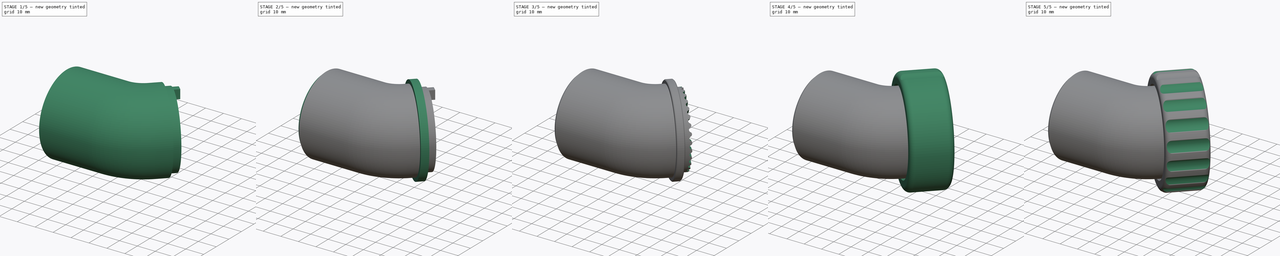
[diagram: build sequence overview — one tinted view per stage of 5, left to right]
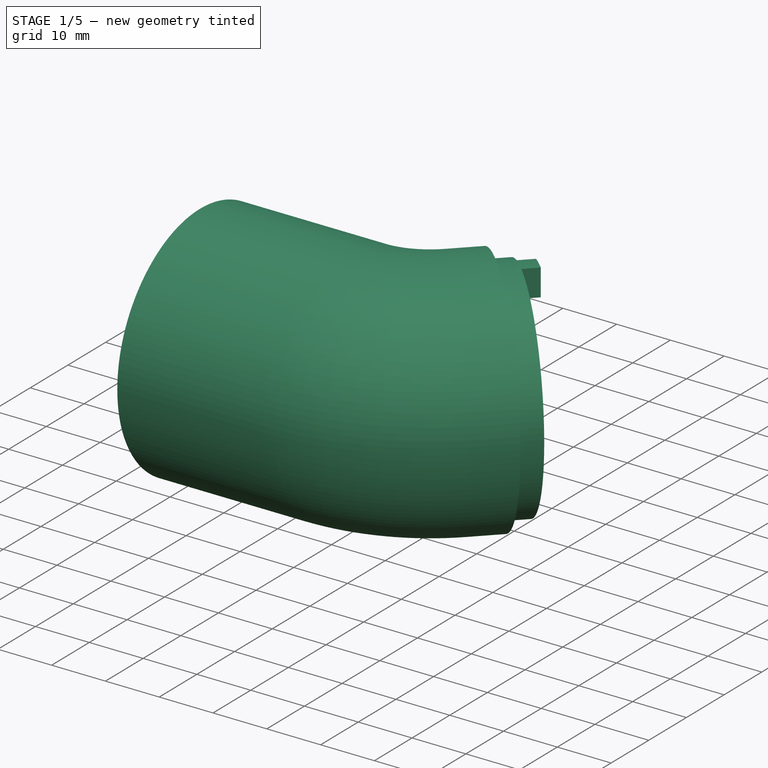
[diagram: stage 1 of 5 — iso view after this stage's code; geometry added in this stage tinted green]
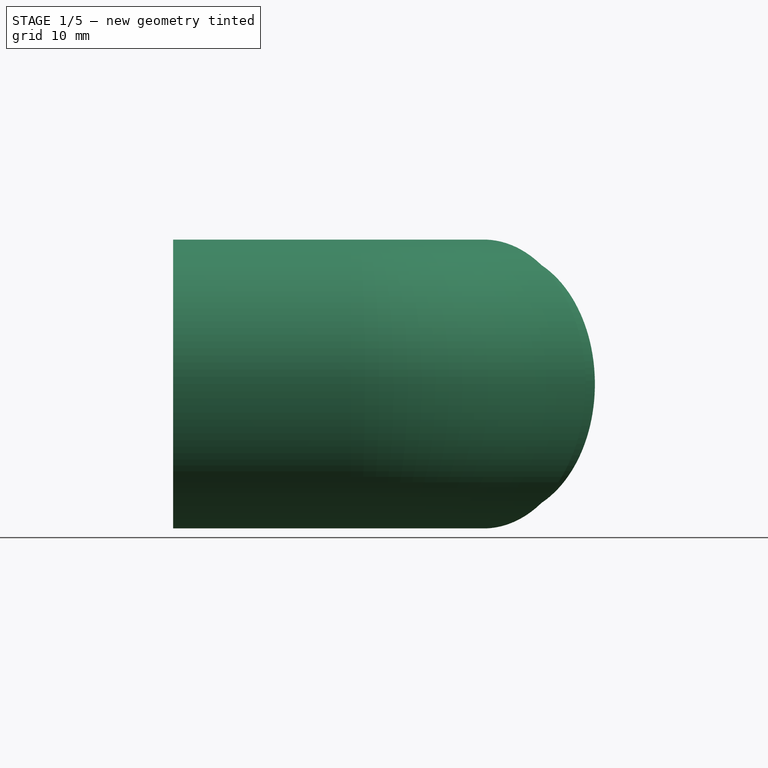
[diagram: stage 1 of 5 — front view after this stage's code; geometry added in this stage tinted green]
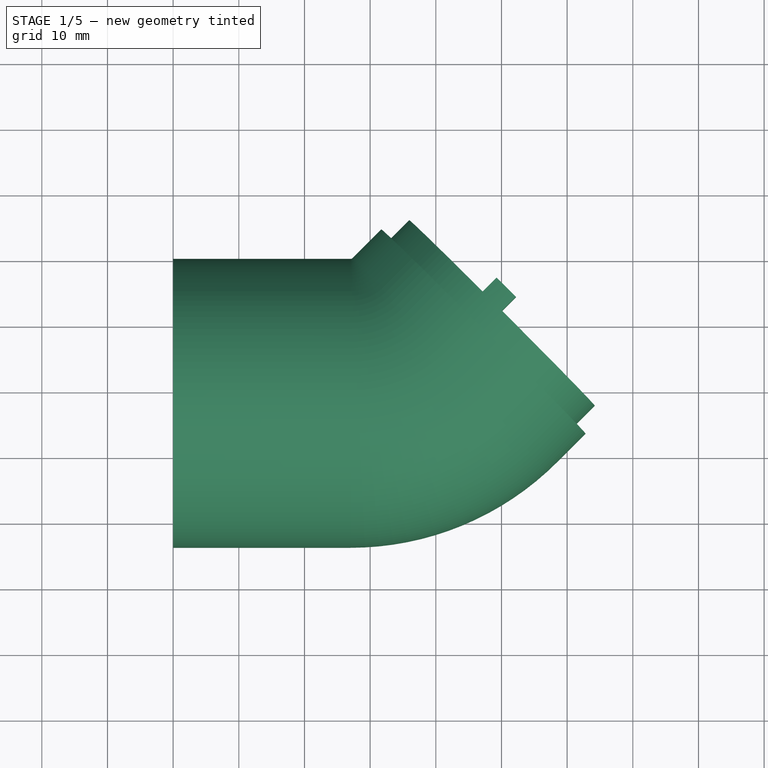
[diagram: stage 1 of 5 — top view after this stage's code; geometry added in this stage tinted green]
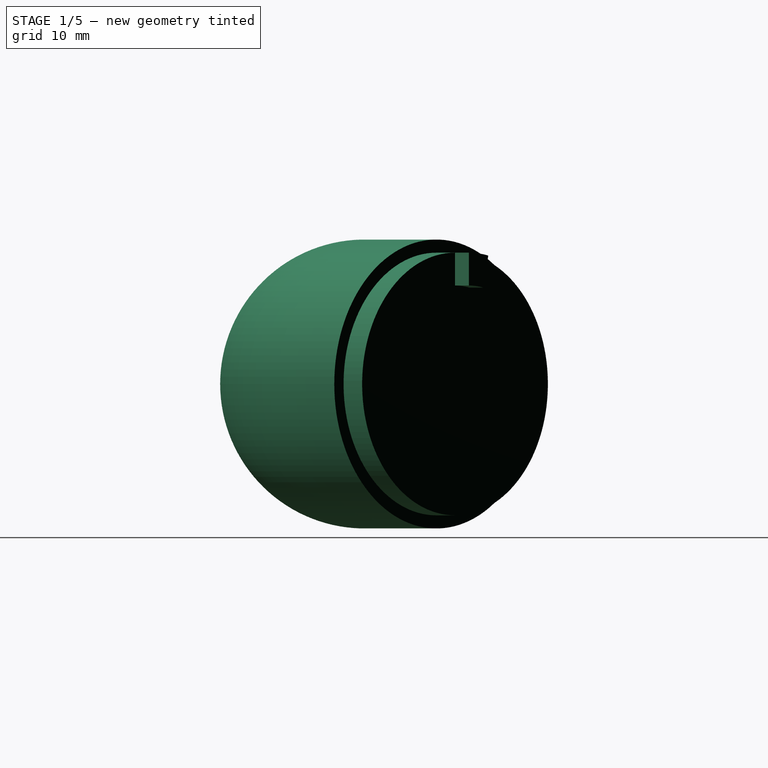
[diagram: stage 1 of 5 — right view after this stage's code; geometry added in this stage tinted green]
FCSTD DOCUMENT  (FreeCAD 0.20R)
Label: TS55_HosePort
License: Creative Commons Attribution-NonCommercial
LicenseURL: http://creativecommons.org/licenses/by-nc/4.0/
objects: Sketcher::SketchObject×11, Part::FeaturePython×4, PartDesign::Line×2, PartDesign::Plane×2, PartDesign::Revolution×2, PartDesign::Body×2, PartDesign::Chamfer×2, Part::Cut×2, Part::Feature×2, PartDesign::AdditivePipe×1, PartDesign::Pad×1, App::Link×1, PartDesign::SubtractivePipe×1, PartDesign::SubtractiveCylinder×1, PartDesign::PolarPattern×1, Part::MultiFuse×1, App::DocumentObjectGroup×1, Part::Compound×1
note: 44 computed .brp shape members not serialized (recipe doc carries the construction recipe); baked Part::Feature solids carry a one-line shape summary decoded from their .brp
EXTERNAL_REF file=../FestoolVacuumNozzle/VacuumNozzle.FCStd obj=Body001

FEATURE [Sketcher::SketchObject] Sketch
  FullyConstrained = true
  MapMode = 5
  Support = -> [XY_Plane]
  sketch-geometry (3):
    g0: LineSegment StartX=0 StartY=0 StartZ=0 EndX=27 EndY=0 EndZ=0
    g1: ArcOfCircle CenterX=27 CenterY=0.5 CenterZ=0 NormalX=0 NormalY=0 NormalZ=1 AngleXU=0 Radius=0.5 StartAngle=4.71239 EndAngle=5.49779
    g2: LineSegment StartX=27.3536 StartY=0.146447 StartZ=0 EndX=31.6986 EndY=4.49147 EndZ=0
  constraints (8):
    c: PointOnObject(g0,g-1)
    c: Tangent(g0,g1) = -1.5708
    c: Tangent(g1,g2) = -1.5708
    c: Radius(g1) = 0.5
    c: Distance(g0) = 27
    c: Coincident(g0,g-1)
    c: Angle(g2,g0) = 2.35619
    c: Distance(g2,g0) = 6.5
FEATURE [Sketcher::SketchObject] Sketch001
  FullyConstrained = true
  MapMode = 7
  Placement = pos=(0,0,0) rot=(0.57735,-0.57735,-0.57735;2.0944rad)
  Support = -> [Sketch]
  sketch-geometry (1):
    g0: Circle CenterX=22 CenterY=0 CenterZ=0 NormalX=0 NormalY=0 NormalZ=1 AngleXU=0 Radius=22
  constraints (3):
    c: PointOnObject(g0,g-1)
    c: PointOnObject(g-1,g0)
    c: Diameter(g0) = 44
FEATURE [PartDesign::AdditivePipe] AdditivePipe
  AuxilleryCurvelinear = true
  AuxillerySpineTangent = false
  Binormal = (0,0,0)
  Mode = 0
  Profile = -> Sketch001
  Spine = -> Sketch
  SpineTangent = false
  Transformation = 0
  Transition = 0
FEATURE [Sketcher::SketchObject] Sketch002
  FullyConstrained = true
  MapMode = 11
  Placement = pos=(47.2549,-11.0649,0) rot=(0.357407,-0.862856,0.357407;1.71777rad)
  Support = -> [AdditivePipe]
  sketch-geometry (1):
    g0: Circle CenterX=0 CenterY=0 CenterZ=0 NormalX=0 NormalY=0 NormalZ=1 AngleXU=0 Radius=20
  constraints (2):
    c: Coincident(g0,g-1)
    c: Diameter(g0) = 40
FEATURE [PartDesign::Pad] Pad
  BaseFeature = -> AdditivePipe
  Direction = (-0.707107,-0.707107,0)
  Length = 4
  Length2 = 100
  Profile = -> Sketch002
  Reversed = true
  Type = 0
FEATURE [Part::Feature] Cut_Face10  label="SupportSurface_RadialSpline"
  shape: bbox 31.11 x 31.11 x 40 mm, 1 faces, 0 solids (baked)
FEATURE [Sketcher::SketchObject] Mapped_Sketch002
  FullyConstrained = true
  Support = -> [Cut_Face10]
  expr: Constraints[18] = .Constraints.width / 30
  sketch-geometry (11):
    g0: LineSegment StartX=0 StartY=-4 StartZ=0 EndX=125.66 EndY=-4 EndZ=0
    g1: LineSegment StartX=125.66 StartY=-4 StartZ=0 EndX=125.66 EndY=0 EndZ=0
    g2: LineSegment StartX=125.66 StartY=0 StartZ=0 EndX=0 EndY=0 EndZ=0
    g3: LineSegment StartX=0 StartY=0 StartZ=0 EndX=0 EndY=-4 EndZ=0
    g4: ArcOfCircle CenterX=0 CenterY=-2.83149 CenterZ=0 NormalX=0 NormalY=0 NormalZ=1 AngleXU=0 Radius=1.16851 StartAngle=4.71239 EndAngle=5.82342
    g5: ArcOfCircle CenterX=2.09433 CenterY=-3.86851 CenterZ=0 NormalX=0 NormalY=0 NormalZ=1 AngleXU=0 Radius=1.16851 StartAngle=0.459761 EndAngle=2.68183
    g6: ArcOfCircle CenterX=4.18867 CenterY=-2.83149 CenterZ=0 NormalX=0 NormalY=0 NormalZ=1 AngleXU=0 Radius=1.16851 StartAngle=3.60135 EndAngle=4.71239
    g7: GeomPoint X=2.09433 Y=-2.7 Z=0
    g8: LineSegment StartX=0 StartY=-4 StartZ=0 EndX=0 EndY=-7 EndZ=0
    g9: LineSegment StartX=0 StartY=-7 StartZ=0 EndX=4.18867 EndY=-7 EndZ=0
    g10: LineSegment StartX=4.18867 StartY=-7 StartZ=0 EndX=4.18867 EndY=-4 EndZ=0
  constraints (32):
    c: Coincident(g0,g1)
    c: Coincident(g1,g2)
    c: Coincident(g2,g3)
    c: Coincident(g3,g0)
    c: Horizontal(g0)
    c: Horizontal(g2)
    c: Vertical(g1)
    c: Vertical(g3)
    c: DistanceX(g2,g2) = 125.66  'width'
    c: DistanceY(g1,g1) = 4
    c: DistanceX(g0,g-1) = 0
    c: DistanceY(g0,g-1) = 4
    c: PointOnObject(g4,g3)
    c: Coincident(g4,g0)
    c: PointOnObject(g6,g0)
    c: Horizontal(g5,g4)
    c: Tangent(g5,g4) = 1.5708
    c: Tangent(g6,g5) = 1.5708
    c: DistanceX(g4,g6) = 4.18867
    c: Vertical(g6,g6)
    c: PointOnObject(g7,g5)
    c: Vertical(g7,g5)
    c: DistanceY(g6,g7) = 1.3
    c: Equal(g6,g5)
    c: Coincident(g8,g4)
    c: PointOnObject(g8,g-2)
    c: Coincident(g9,g8)
    c: Horizontal(g9)
    c: Coincident(g10,g9)
    c: Coincident(g10,g6)
    c: Vertical(g10)
    c: Distance(g10) = 3
FEATURE [Part::FeaturePython] Sketch_On_Surface001  label="RadialSplineKnockout_Profile"  # WARN: FeaturePython — macro-defined, semantics opaque (R4)
  ConstructionBounds = true
  FillExtrusion = true
  FillFaces = true
  ReverseU = false
  ReverseV = false
  Sketch = -> Mapped_Sketch002
  SwapUV = false
  Thickness = -5
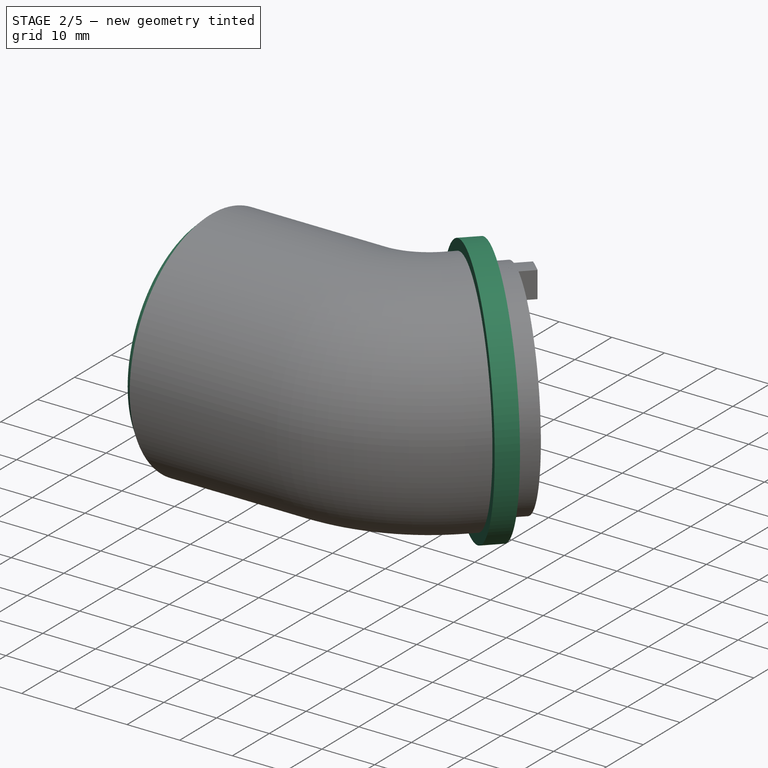
[diagram: stage 2 of 5 — iso view after this stage's code; geometry added in this stage tinted green]
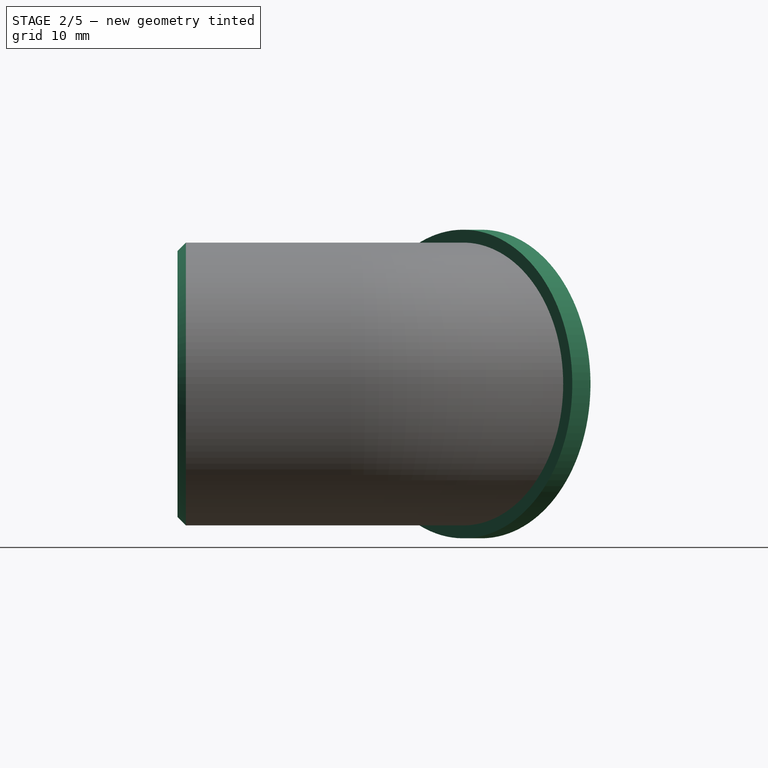
[diagram: stage 2 of 5 — front view after this stage's code; geometry added in this stage tinted green]
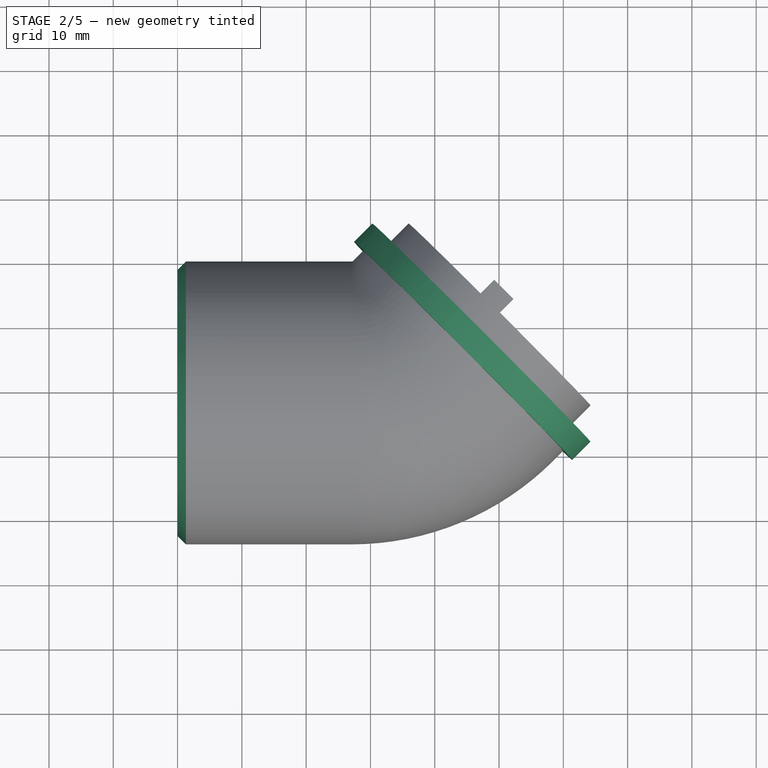
[diagram: stage 2 of 5 — top view after this stage's code; geometry added in this stage tinted green]
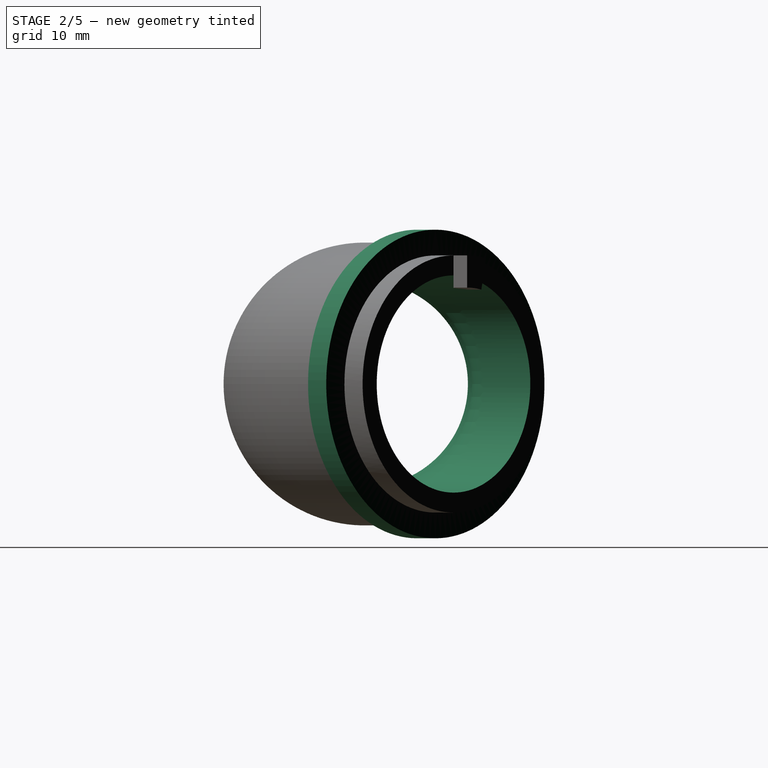
[diagram: stage 2 of 5 — right view after this stage's code; geometry added in this stage tinted green]
FEATURE [Sketcher::SketchObject] Sketch004
  FullyConstrained = true
  MapMode = 5
  Support = -> [XY_Plane]
  sketch-geometry (3):
    g0: LineSegment StartX=0 StartY=0 StartZ=0 EndX=27 EndY=0 EndZ=0
    g1: ArcOfCircle CenterX=27 CenterY=0.5 CenterZ=0 NormalX=0 NormalY=0 NormalZ=1 AngleXU=0 Radius=0.5 StartAngle=4.71239 EndAngle=5.49779
    g2: LineSegment StartX=27.3536 StartY=0.146447 StartZ=0 EndX=37.7096 EndY=10.5025 EndZ=0
  constraints (8):
    c: PointOnObject(g0,g-1)
    c: Tangent(g0,g1) = -1.5708
    c: Tangent(g1,g2) = -1.5708
    c: Radius(g1) = 0.5
    c: Distance(g0) = 27
    c: Coincident(g0,g-1)
    c: Angle(g2,g0) = 2.35619
    c: Distance(g2,g0) = 15
FEATURE [Sketcher::SketchObject] Sketch003
  FullyConstrained = true
  MapMode = 7
  Placement = pos=(0,0,0) rot=(0.57735,-0.57735,-0.57735;2.0944rad)
  Support = -> [Sketch004]
  sketch-geometry (1):
    g0: Circle CenterX=22 CenterY=0 CenterZ=0 NormalX=0 NormalY=0 NormalZ=1 AngleXU=0 Radius=16
  constraints (3):
    c: PointOnObject(g0,g-1)
    c: Diameter(g0) = 32
    c: DistanceX(g0) = 22
FEATURE [App::Link] Link  label="NozzleKnockoutV2"
  LinkPlacement = pos=(-72,-22,0) rot=(0,0,1;0rad)
  LinkedObject = -> <external ../FestoolVacuumNozzle/VacuumNozzle.FCStd>#Body001
  Placement = pos=(-72,-22,0) rot=(0,0,1;0rad)
FEATURE [Sketcher::SketchObject] Sketch005
  FullyConstrained = true
  MapMode = 7
  Placement = pos=(37.7096,10.5025,0) rot=(0.862856,-0.357407,-0.357407;1.71777rad)
  Support = -> [Sketch004]
  sketch-geometry (1):
    g0: Circle CenterX=22 CenterY=0 CenterZ=0 NormalX=0 NormalY=0 NormalZ=1 AngleXU=0 Radius=17
  constraints (3):
    c: PointOnObject(g0,g-1)
    c: DistanceX(g0) = 22
    c: Radius(g0) = 17
FEATURE [PartDesign::SubtractivePipe] SubtractivePipe
  AuxilleryCurvelinear = true
  AuxillerySpineTangent = false
  BaseFeature = -> Pad
  Binormal = (0,0,0)
  Mode = 0
  Profile = -> Sketch003
  Reversed = true
  Sections = -> [Sketch005]
  Spine = -> Sketch004
  SpineTangent = false
  Transformation = 1
  Transition = 0
FEATURE [PartDesign::Line] DatumLine
  AttacherType = Attacher::AttachEngineLine
  Length = 20
  MapMode = 19
  Placement = pos=(50.0834,-8.23649,-6.5391e-07) rot=(-0.862856,0.357407,-0.357407;1.71777rad)
  ResizeMode = 0
  Support = -> [SubtractivePipe]
FEATURE [PartDesign::Plane] DatumPlane
  AttachmentOffset = pos=(0,0,0) rot=(0,1,0;1.5708rad)
  Length = 246.734
  MapMode = 7
  Placement = pos=(47.2549,-11.0649,20) rot=(0.862856,0.357407,0.357407;1.71777rad)
  ResizeMode = 0
  Support = -> [SubtractivePipe]
  Width = 184.872
FEATURE [Sketcher::SketchObject] Sketch006
  FullyConstrained = true
  MapMode = 5
  Placement = pos=(47.2549,-11.0649,20) rot=(0.862856,0.357407,0.357407;1.71777rad)
  Support = -> [DatumPlane]
  sketch-geometry (4):
    g0: LineSegment StartX=0 StartY=0 StartZ=0 EndX=-4 EndY=0 EndZ=0
    g1: LineSegment StartX=-4 StartY=0 StartZ=0 EndX=-4 EndY=4 EndZ=0
    g2: LineSegment StartX=-4 StartY=4 StartZ=0 EndX=0 EndY=4 EndZ=0
    g3: LineSegment StartX=0 StartY=4 StartZ=0 EndX=0 EndY=0 EndZ=0
  constraints (11):
    c: Coincident(g0,g1)
    c: Coincident(g1,g2)
    c: Coincident(g2,g3)
    c: Coincident(g3,g0)
    c: Horizontal(g0)
    c: Horizontal(g2)
    c: Vertical(g1)
    c: Vertical(g3)
    c: Coincident(g0,g-1)
    c: DistanceX(g2,g2) = 4
    c: Distance(g3) = 4
FEATURE [PartDesign::Revolution] Revolution
  Angle = 360
  Axis = (0.707107,0.707107,3e-15)
  Base = (50.0834,-8.23649,-6.5391e-07)
  BaseFeature = -> SubtractivePipe
  Profile = -> Sketch006
  ReferenceAxis = -> DatumLine
FEATURE [PartDesign::Body] Body001  label="BayonetRing"
  Group = -> [DatumPlane001,Sketch007,Revolution001,Cylinder,DatumLine001,PolarPattern]
  Origin = -> Origin001
  Tip = -> PolarPattern
FEATURE [Sketcher::SketchObject] Mapped_Sketch001  label="Layout_RingBayonet"
  FullyConstrained = true
  expr: Constraints[25] = .Constraints.width / 3
  expr: Constraints[35] = .Constraints.width / 3
  sketch-geometry (19):
    g0: LineSegment StartX=0 StartY=0 StartZ=0 EndX=140.12 EndY=0 EndZ=0
    g1: LineSegment StartX=140.12 StartY=0 StartZ=0 EndX=140.12 EndY=11.3 EndZ=0
    g2: LineSegment StartX=140.12 StartY=11.3 StartZ=0 EndX=0 EndY=11.3 EndZ=0
    g3: LineSegment StartX=0 StartY=11.3 StartZ=0 EndX=0 EndY=0 EndZ=0
    g4: ArcOfCircle CenterX=16.7741 CenterY=6.62136 CenterZ=0 NormalX=0 NormalY=0 NormalZ=1 AngleXU=0 Radius=1.8 StartAngle=4.65357 EndAngle=6.22437
    g5: ArcOfCircle CenterX=1.8 CenterY=7.50311 CenterZ=0 NormalX=0 NormalY=0 NormalZ=1 AngleXU=0 Radius=1.8 StartAngle=3.08278 EndAngle=4.65357
    g6: LineSegment StartX=16.8799 StartY=8.41824 StartZ=0 EndX=1.90581 EndY=9.3 EndZ=0
    g7: LineSegment StartX=16.6683 StartY=4.82447 StartZ=0 EndX=1.69419 EndY=5.70623 EndZ=0
    g8: ArcOfCircle CenterX=63.4807 CenterY=6.62136 CenterZ=0 NormalX=0 NormalY=0 NormalZ=1 AngleXU=0 Radius=1.8 StartAngle=4.65357 EndAngle=7.79516
    g9: ArcOfCircle CenterX=48.5067 CenterY=7.50311 CenterZ=0 NormalX=0 NormalY=0 NormalZ=1 AngleXU=0 Radius=1.8 StartAngle=1.51198 EndAngle=4.65357
    g10: LineSegment StartX=63.5865 StartY=8.41824 StartZ=0 EndX=48.6125 EndY=9.3 EndZ=0
    g11: LineSegment StartX=63.3749 StartY=4.82447 StartZ=0 EndX=48.4009 EndY=5.70623 EndZ=0
    g12: ArcOfCircle CenterX=110.187 CenterY=6.62136 CenterZ=0 NormalX=0 NormalY=0 NormalZ=1 AngleXU=0 Radius=1.8 StartAngle=4.65357 EndAngle=7.79516
    g13: ArcOfCircle CenterX=95.2133 CenterY=7.50311 CenterZ=0 NormalX=0 NormalY=0 NormalZ=1 AngleXU=0 Radius=1.8 StartAngle=1.51198 EndAngle=4.65357
    g14: LineSegment StartX=110.293 StartY=8.41824 StartZ=0 EndX=95.3191 EndY=9.3 EndZ=0
    g15: LineSegment StartX=110.082 StartY=4.82447 StartZ=0 EndX=95.1075 EndY=5.70623 EndZ=0
    g16: LineSegment StartX=0.00311266 StartY=7.60892 StartZ=0 EndX=18.5709 EndY=6.51555 EndZ=0
    g17: ArcOfCircle CenterX=1.8 CenterY=7.50311 CenterZ=0 NormalX=0 NormalY=0 NormalZ=1 AngleXU=0 Radius=1.8 StartAngle=1.51198 EndAngle=3.08278
    g18: ArcOfCircle CenterX=16.7741 CenterY=6.62136 CenterZ=0 NormalX=0 NormalY=0 NormalZ=1 AngleXU=0 Radius=1.8 StartAngle=6.22437 EndAngle=7.79516
  constraints (50):
    c: Coincident(g0,g1)
    c: Coincident(g1,g2)
    c: Coincident(g2,g3)
    c: Coincident(g3,g0)
    c: Horizontal(g0)
    c: Horizontal(g2)
    c: Vertical(g1)
    c: Vertical(g3)
    c: DistanceX(g2,g2) = 140.12  'width'
    c: DistanceY(g1,g1) = 11.3
    c: DistanceX(g0,g-1) = 0
    c: DistanceY(g0,g-1) = 0
    c: Tangent(g4,g7) = 1.5708
    c: Tangent(g7,g5) = 1.5708
    c: Equal(g4,g5)
    c: Radius(g4) = 1.8
    c: Distance(g6) = 15
    c: Tangent(g5,g-2)
    c: Tangent(g8,g11) = 1.5708
    c: Tangent(g8,g10) = -1.5708
    c: Tangent(g10,g9) = -1.5708
    c: Tangent(g11,g9) = 1.5708
    c: Equal(g8,g9)
    c: Equal(g4,g8) = 1.8
    c: Equal(g6,g10) = 12
    c: DistanceX(g4,g8) = 46.7067
    c: Tangent(g12,g15) = 1.5708
    c: Tangent(g12,g14) = -1.5708
    c: Tangent(g14,g13) = -1.5708
    c: Tangent(g15,g13) = 1.5708
    c: Equal(g12,g13)
    c: Equal(g12,g8)
    c: Equal(g15,g11)
    c: Horizontal(g8,g12)
    c: Horizontal(g13,g9)
    c: DistanceX(g8,g12) = 46.7067
    c: PointOnObject(g4,g16)
    c: PointOnObject(g5,g16)
    c: Coincident(g4,g16)
    c: Coincident(g5,g16)
    c: Coincident(g17,g5)
    c: Coincident(g17,g5)
    c: Coincident(g18,g4)
    c: Coincident(g18,g4)
    c: Tangent(g18,g6) = -1.5708
    c: Tangent(g17,g6) = -1.5708
    c: DistanceY(g6,g2) = 2
    c: Horizontal(g8,g4)
    c: Horizontal(g9,g5)
    c: Angle(g6,g2) = 0.0588176
FEATURE [PartDesign::Chamfer] Chamfer
  Angle = 45
  Base = -> Revolution [Edge1]
  BaseFeature = -> Revolution
  ChamferType = 0
  FlipDirection = false
  Refine = true
  Size = 1.3
  Size2 = 1
  SupportTransform = false
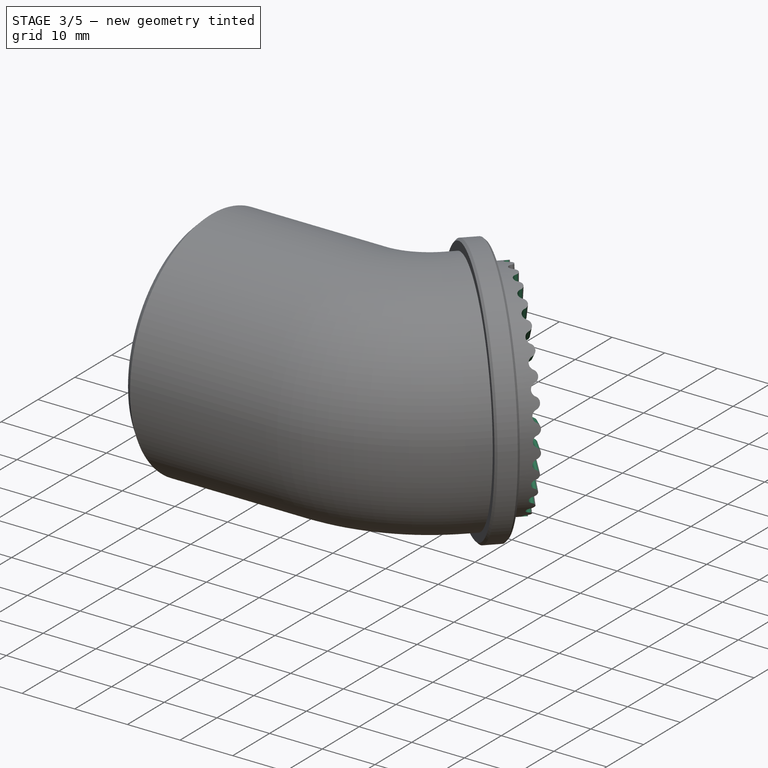
[diagram: stage 3 of 5 — iso view after this stage's code; geometry added in this stage tinted green]
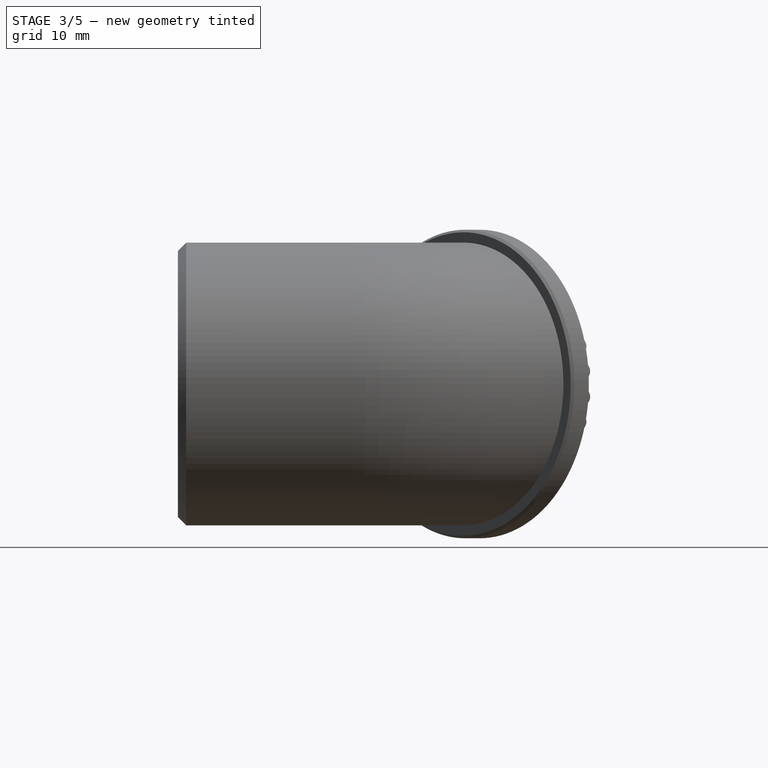
[diagram: stage 3 of 5 — front view after this stage's code; geometry added in this stage tinted green]
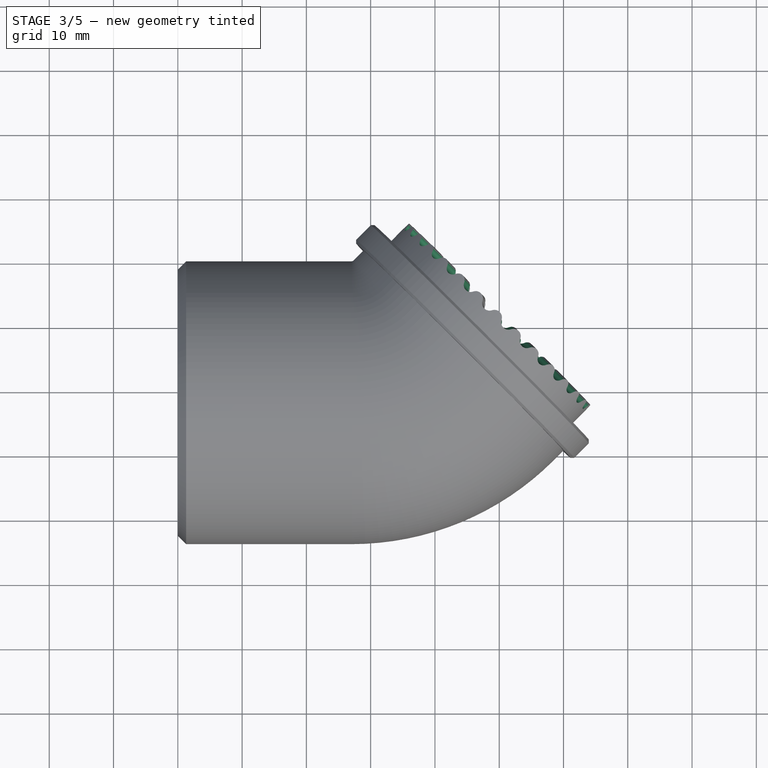
[diagram: stage 3 of 5 — top view after this stage's code; geometry added in this stage tinted green]
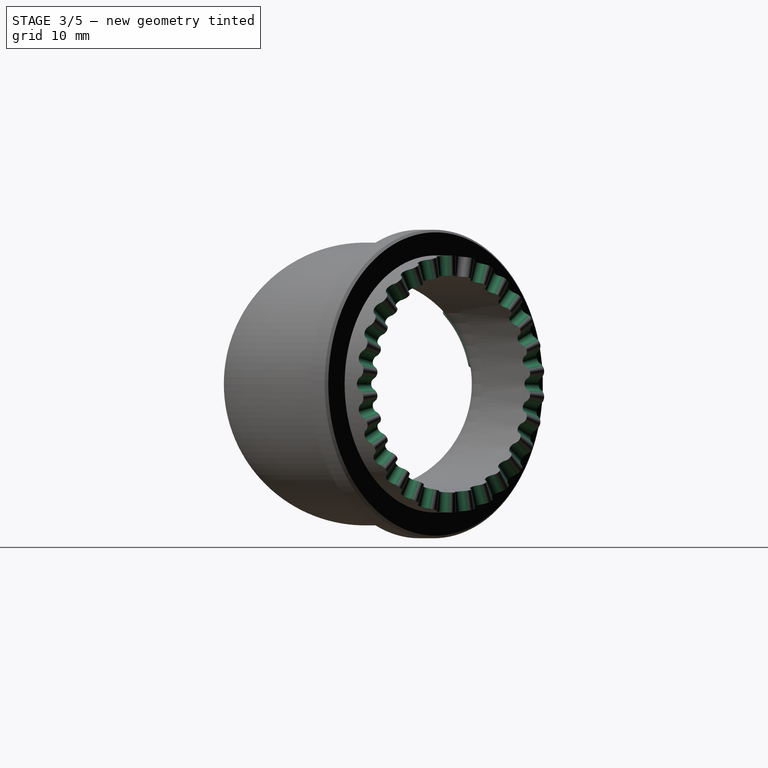
[diagram: stage 3 of 5 — right view after this stage's code; geometry added in this stage tinted green]
FEATURE [PartDesign::Chamfer] Chamfer001
  Angle = 45
  Base = -> Chamfer [Edge22,Edge18]
  BaseFeature = -> Chamfer
  ChamferType = 0
  FlipDirection = false
  Refine = true
  Size = 0.4
  Size2 = 1
  SupportTransform = false
FEATURE [PartDesign::Body] Body  label="OutletBlank"
  Group = -> [Sketch,Sketch001,AdditivePipe,Sketch002,Pad,Sketch003,Sketch004,SubtractivePipe,Sketch005,DatumLine,DatumPlane,Sketch006,Revolution,Chamfer,Chamfer001]
  Origin = -> Origin
  Tip = -> Chamfer001
FEATURE [Part::Cut] Cut  label="Outlet_Bayonet"
  Base = -> Body
  Tool = -> Link
FEATURE [Part::FeaturePython] Populate  label="Populate PolarArray with RadialSplineKnockout_Profile"  # WARN: FeaturePython — macro-defined, semantics opaque (R4)
  Copying = 0
  ExposePlacement = false
  MarkerShape = 1
  MarkerSize = 0
  NumElements = 0
  Object = -> Sketch_On_Surface001
  OutputCompounding = 1
  PlacementsTo = -> PolarArray
  Referencing = 1
  Type = lattice2PopulateCopies.LatticePopulateCopies
  isLattice = 0
FEATURE [Part::Cut] Cut001  label="HosePort"
  Base = -> Cut
  Refine = true
  Tool = -> Populate
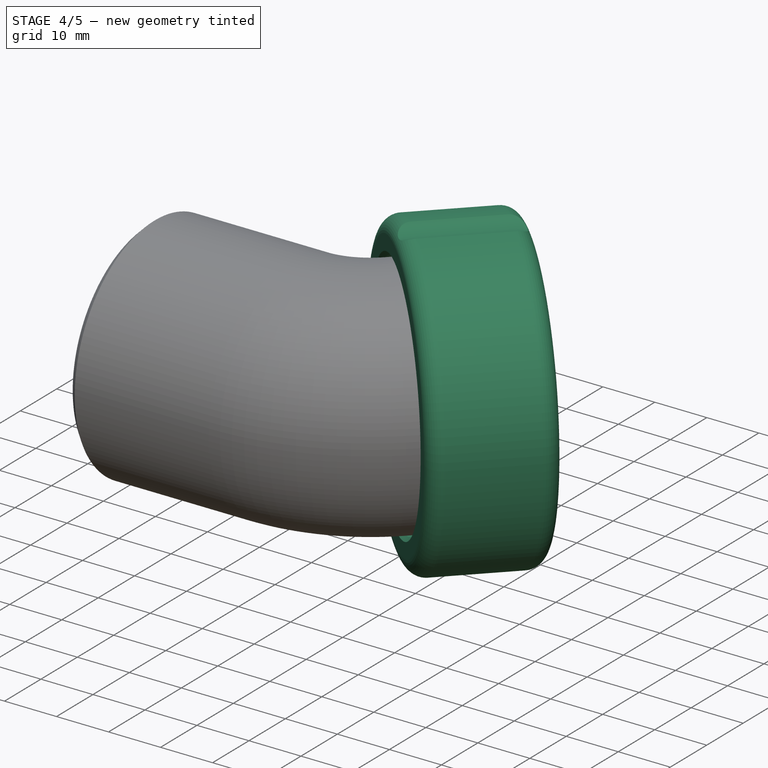
[diagram: stage 4 of 5 — iso view after this stage's code; geometry added in this stage tinted green]
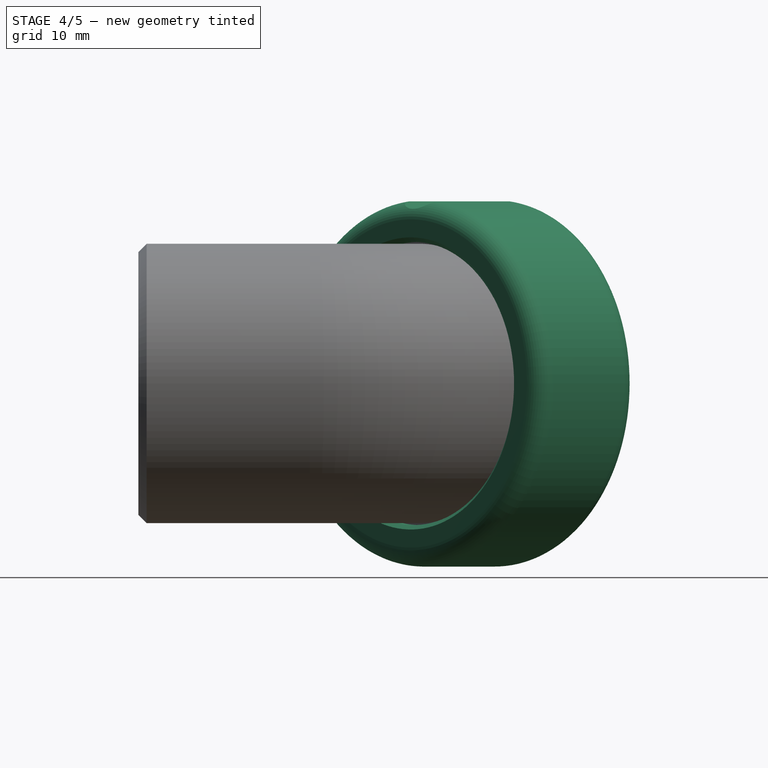
[diagram: stage 4 of 5 — front view after this stage's code; geometry added in this stage tinted green]
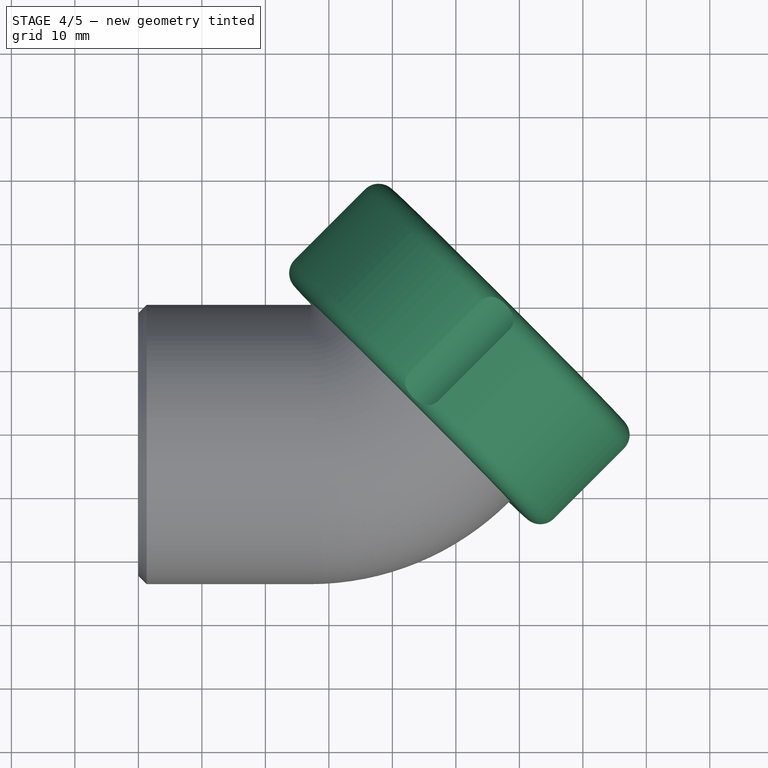
[diagram: stage 4 of 5 — top view after this stage's code; geometry added in this stage tinted green]
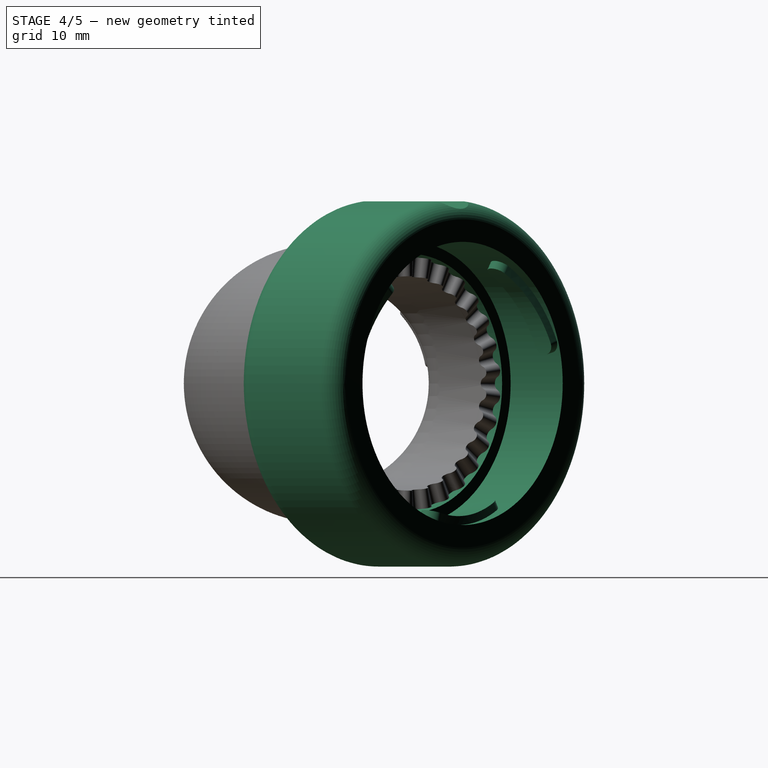
[diagram: stage 4 of 5 — right view after this stage's code; geometry added in this stage tinted green]
FEATURE [PartDesign::Plane] DatumPlane001
  Length = 253.455
  MapMode = 2
  Placement = pos=(43.5,-14.8,0) rot=(0,0,1;0.785398rad)
  ResizeMode = 0
  Width = 253.455
FEATURE [Sketcher::SketchObject] Sketch007
  FullyConstrained = true
  MapMode = 5
  Placement = pos=(43.5,-14.8,0) rot=(0,0,1;0.785398rad)
  Support = -> [DatumPlane001]
  sketch-geometry (13):
    g0: LineSegment StartX=-0.142893 StartY=-22.3 StartZ=0 EndX=1 EndY=-22.3 EndZ=0
    g1: LineSegment StartX=1 StartY=-22.3 StartZ=0 EndX=1 EndY=-24.3 EndZ=0
    g2: LineSegment StartX=1 StartY=-24.3 StartZ=0 EndX=5.8 EndY=-24.3 EndZ=0
    g3: LineSegment StartX=5.8 StartY=-24.3 StartZ=0 EndX=5.8 EndY=-20.4 EndZ=0
    g4: LineSegment StartX=5.8 StartY=-20.4 StartZ=0 EndX=9.2 EndY=-20.4 EndZ=0
    g5: LineSegment StartX=20.8 StartY=-22.3 StartZ=0 EndX=20.8 EndY=-25.85 EndZ=0
    g6: LineSegment StartX=17.8 StartY=-28.85 StartZ=0 EndX=2.15 EndY=-28.85 EndZ=0
    g7: LineSegment StartX=-0.85 StartY=-25.85 StartZ=0 EndX=-0.85 EndY=-23.0071 EndZ=0
    g8: ArcOfCircle CenterX=2.15 CenterY=-25.85 CenterZ=0 NormalX=0 NormalY=0 NormalZ=1 AngleXU=0 Radius=3 StartAngle=3.14159 EndAngle=4.71239
    g9: ArcOfCircle CenterX=17.8 CenterY=-25.85 CenterZ=0 NormalX=0 NormalY=0 NormalZ=1 AngleXU=0 Radius=3 StartAngle=4.71239 EndAngle=6.28319
    g10: LineSegment StartX=-0.142893 StartY=-22.3 StartZ=0 EndX=-0.85 EndY=-23.0071 EndZ=0
    g11: LineSegment StartX=9.2 StartY=-20.4 StartZ=0 EndX=9.2 EndY=-22.3 EndZ=0
    g12: LineSegment StartX=9.2 StartY=-22.3 StartZ=0 EndX=20.8 EndY=-22.3 EndZ=0
  constraints (37):
    c: Coincident(g0,g1)
    c: Vertical(g1)
    c: Coincident(g1,g2)
    c: Horizontal(g2)
    c: Coincident(g2,g3)
    c: Vertical(g3)
    c: Coincident(g3,g4)
    c: Horizontal(g4)
    c: Vertical(g5)
    c: Vertical(g7)
    c: DistanceX(g2,g2) = 4.8
    c: Horizontal(g6)
    c: DistanceY(g3) = -20.4
    c: DistanceY(g2) = -24.3
    c: Horizontal(g0)
    c: Tangent(g6,g8) = 1.5708
    c: Tangent(g7,g8) = 1.5708
    c: Tangent(g5,g9) = 1.5708
    c: Tangent(g6,g9) = 1.5708
    c: Coincident(g0,g10)
    c: Coincident(g7,g10)
    c: Angle(g7,g10) = 2.35619
    c: DistanceX(g7,g1) = 1.85
    c: DistanceY(g6,g0) = 6.55
    c: Distance(g10) = 1
    c: Equal(g9,g8)
    c: DistanceX(g0) = 1
    c: DistanceY(g0) = -22.3
    c: Radius(g8) = 3
    c: Coincident(g11,g12)
    c: Horizontal(g12)
    c: Vertical(g11)
    c: Coincident(g4,g11)
    c: Coincident(g5,g12)
    c: DistanceX(g3,g5) = 15
    c: DistanceX(g4,g4) = 3.4
    c: DistanceY(g11) = -22.3
FEATURE [PartDesign::Revolution] Revolution001
  Angle = 360
  Axis = (0.707107,0.707107,0)
  Base = (43.5,-14.8,0)
  Placement = pos=(43.5,-14.8,0) rot=(0,0,1;0.785398rad)
  Profile = -> Sketch007
  ReferenceAxis = -> Sketch007 [H_Axis]
  Refine = true
  Reversed = true
FEATURE [PartDesign::SubtractiveCylinder] Cylinder
  Angle = 360
  AttacherType = Attacher::AttachEngine3D
  AttachmentOffset = pos=(32.5,0,-17) rot=(0,0,1;0rad)
  BaseFeature = -> Revolution001
  FirstAngle = 0
  Height = 33
  MapMode = 11
  Placement = pos=(59.622,1.32203,32.5) rot=(0.357407,-0.862856,0.357407;1.71777rad)
  Radius = 5
  Refine = true
  SecondAngle = 0
  Support = -> [Revolution001]
FEATURE [Part::FeaturePython] PolarArray  # WARN: FeaturePython — macro-defined, semantics opaque (R4)
  Alignment = 0
  AttacherType = Attacher::AttachEngine3D
  CellStart = A1
  Count = 30
  DistributionLaw = 0
  EndInclusive = false
  ExposePlacement = false
  FlipX = false
  FlipZ = false
  GeneratorMode = 0
  MapMode = 11
  MarkerShape = 1
  MarkerSize = 0
  NumElements = 30
  OrientMode = 2
  Placement = pos=(50.0834,-8.23645,-7.1e-15) rot=(0.281085,0.678598,-0.678598;3.68962rad)
  Radius = 20
  Reverse = false
  SpanEnd = 360
  SpanStart = 0
  Step = 12
  Support = -> [Cut]
  Type = lattice2PolarArray2.PolarArray
  UseArcRadius = true
  UseArcRange = 1
  VSGVersion = 1
  Values = 0.0 | 12.0 | 24.0 | 36.0 | 48.0 | 60.0 | 72.0 | 84.0 | 96.0 | 108.0 | 120.0 | 132.0 | 144.0 | 156.0 | 168.0 | 180.0 | 192.0 | 204.0 | 216.0 | 228.0 | 240.0 | 252.0 | 264.0 | 276.0 | 288.0 | 300.0 | 312.0 | 324.0 | 336.0 | 348.0
  ValuesSource = 2
  isLattice = 1
FEATURE [Part::Feature] PolarPattern_Face44  label="SupportSurface_RingBayonet"
  Placement = pos=(70.0872,-9.14315,76) rot=(0,0.816497,-0.57735;4.18879rad)
  shape: bbox 39.74 x 39.74 x 44.6 mm, 1 faces, 0 solids (baked)
FEATURE [Sketcher::SketchObject] Mapped_Sketch
  FullyConstrained = true
  Support = -> [PolarPattern_Face44]
  expr: Constraints[58] = Mapped_Sketch001.Constraints[46]
  expr: Constraints[59] = Mapped_Sketch001.Constraints[47]
  expr: Constraints[47] = Mapped_Sketch001.Constraints[35]
  expr: Constraints[37] = Mapped_Sketch001.Constraints[25]
  expr: Constraints[27] = Mapped_Sketch001.Constraints[15]
  expr: Constraints[22] = Mapped_Sketch001.Constraints[10]
  expr: Constraints[28] = Mapped_Sketch001.Constraints[16]
  expr: Constraints[21] = Mapped_Sketch001.Constraints[9]
  expr: Constraints[23] = Mapped_Sketch001.Constraints[11]
  expr: .Constraints.width = Mapped_Sketch001.Constraints[8]
  sketch-geometry (23):
    g0: LineSegment StartX=0 StartY=0 StartZ=0 EndX=140.115 EndY=0 EndZ=0
    g1: LineSegment StartX=140.115 StartY=0 StartZ=0 EndX=140.115 EndY=11.6 EndZ=0
    g2: LineSegment StartX=140.115 StartY=11.6 StartZ=0 EndX=0 EndY=11.6 EndZ=0
    g3: LineSegment StartX=0 StartY=11.6 StartZ=0 EndX=0 EndY=0 EndZ=0
    g4: LineSegment StartX=0 StartY=0 StartZ=0 EndX=140.12 EndY=0 EndZ=0
    g5: LineSegment StartX=140.12 StartY=0 StartZ=0 EndX=140.12 EndY=11.3 EndZ=0
    g6: LineSegment StartX=140.12 StartY=11.3 StartZ=0 EndX=0 EndY=11.3 EndZ=0
    g7: LineSegment StartX=0 StartY=11.3 StartZ=0 EndX=0 EndY=0 EndZ=0
    g8: ArcOfCircle CenterX=16.6661 CenterY=9.51607 CenterZ=0 NormalX=0 NormalY=0 NormalZ=1 AngleXU=0 Radius=1.8 StartAngle=4.84612 EndAngle=6.41692
    g9: ArcOfCircle CenterX=1.8 CenterY=7.51607 CenterZ=0 NormalX=0 NormalY=0 NormalZ=1 AngleXU=0 Radius=1.8 StartAngle=3.27532 EndAngle=4.84612
    g10: LineSegment StartX=16.4261 StartY=11.3 StartZ=0 EndX=1.56 EndY=9.3 EndZ=0
    g11: LineSegment StartX=16.9061 StartY=7.73214 StartZ=0 EndX=2.04 EndY=5.73214 EndZ=0
    g12: ArcOfCircle CenterX=63.3727 CenterY=9.51607 CenterZ=0 NormalX=0 NormalY=0 NormalZ=1 AngleXU=0 Radius=1.8 StartAngle=4.84612 EndAngle=7.98771
    g13: ArcOfCircle CenterX=48.5067 CenterY=7.51607 CenterZ=0 NormalX=0 NormalY=0 NormalZ=1 AngleXU=0 Radius=1.8 StartAngle=1.70453 EndAngle=4.84612
    g14: LineSegment StartX=63.1327 StartY=11.3 StartZ=0 EndX=48.2667 EndY=9.3 EndZ=0
    g15: LineSegment StartX=63.6127 StartY=7.73214 StartZ=0 EndX=48.7467 EndY=5.73214 EndZ=0
    g16: ArcOfCircle CenterX=110.079 CenterY=9.51607 CenterZ=0 NormalX=0 NormalY=0 NormalZ=1 AngleXU=0 Radius=1.8 StartAngle=4.84612 EndAngle=7.98771
    g17: ArcOfCircle CenterX=95.2133 CenterY=7.51607 CenterZ=0 NormalX=0 NormalY=0 NormalZ=1 AngleXU=0 Radius=1.8 StartAngle=1.70453 EndAngle=4.84612
    g18: LineSegment StartX=109.839 StartY=11.3 StartZ=0 EndX=94.9733 EndY=9.3 EndZ=0
    g19: LineSegment StartX=110.319 StartY=7.73214 StartZ=0 EndX=95.4533 EndY=5.73214 EndZ=0
    g20: LineSegment StartX=0.0160718 StartY=7.27607 StartZ=0 EndX=18.45 EndY=9.75607 EndZ=0
    g21: ArcOfCircle CenterX=1.8 CenterY=7.51607 CenterZ=0 NormalX=0 NormalY=0 NormalZ=1 AngleXU=0 Radius=1.8 StartAngle=1.70453 EndAngle=3.27532
    g22: ArcOfCircle CenterX=16.6661 CenterY=9.51607 CenterZ=0 NormalX=0 NormalY=0 NormalZ=1 AngleXU=0 Radius=1.8 StartAngle=0.133732 EndAngle=1.70453
  constraints (62):
    c: Coincident(g0,g1)
    c: Coincident(g1,g2)
    c: Coincident(g2,g3)
    c: Coincident(g3,g0)
    c: Horizontal(g0)
    c: Horizontal(g2)
    c: Vertical(g1)
    c: Vertical(g3)
    c: DistanceX(g2,g2) = 140.115
    c: DistanceY(g1,g1) = 11.6
    c: DistanceX(g0,g-1) = 0
    c: DistanceY(g0,g-1) = 0
    c: Coincident(g4,g5)
    c: Coincident(g5,g6)
    c: Coincident(g6,g7)
    c: Coincident(g7,g4)
    c: Horizontal(g4)
    c: Horizontal(g6)
    c: Vertical(g5)
    c: Vertical(g7)
    c: DistanceX(g6,g6) = 140.12  'width'
    c: DistanceY(g5,g5) = 11.3
    c: DistanceX(g4,g-1) = 0
    c: DistanceY(g4,g-1) = 0
    c: Tangent(g8,g11) = 1.5708
    c: Tangent(g11,g9) = 1.5708
    c: Equal(g8,g9)
    c: Radius(g8) = 1.8
    c: Distance(g10) = 15
    c: Tangent(g9,g-2)
    c: Tangent(g12,g15) = 1.5708
    c: Tangent(g12,g14) = -1.5708
    c: Tangent(g14,g13) = -1.5708
    c: Tangent(g15,g13) = 1.5708
    c: Equal(g12,g13)
    c: Equal(g8,g12) = 1.8
    c: Equal(g10,g14) = 12
    c: DistanceX(g8,g12) = 46.7067
    c: Tangent(g16,g19) = 1.5708
    c: Tangent(g16,g18) = -1.5708
    c: Tangent(g18,g17) = -1.5708
    c: Tangent(g19,g17) = 1.5708
    c: Equal(g16,g17)
    c: Equal(g16,g12)
    c: Equal(g19,g15)
    c: Horizontal(g12,g16)
    c: Horizontal(g17,g13)
    c: DistanceX(g12,g16) = 46.7067
    c: PointOnObject(g8,g20)
    c: PointOnObject(g9,g20)
    c: Coincident(g8,g20)
    c: Coincident(g9,g20)
    c: Coincident(g21,g9)
    c: Coincident(g21,g9)
    c: Coincident(g22,g8)
    c: Coincident(g22,g8)
    c: Tangent(g22,g10) = -1.5708
    c: Tangent(g21,g10) = -1.5708
    c: DistanceY(g10,g6) = 2
    c: DistanceY(g10,g6) = 0
    c: Horizontal(g12,g8)
    c: Horizontal(g13,g9)
FEATURE [Part::FeaturePython] Sketch_On_Surface  # WARN: FeaturePython — macro-defined, semantics opaque (R4)
  ConstructionBounds = true
  FillExtrusion = true
  FillFaces = true
  ReverseU = false
  ReverseV = false
  Sketch = -> Mapped_Sketch
  SwapUV = false
  Thickness = 1.4
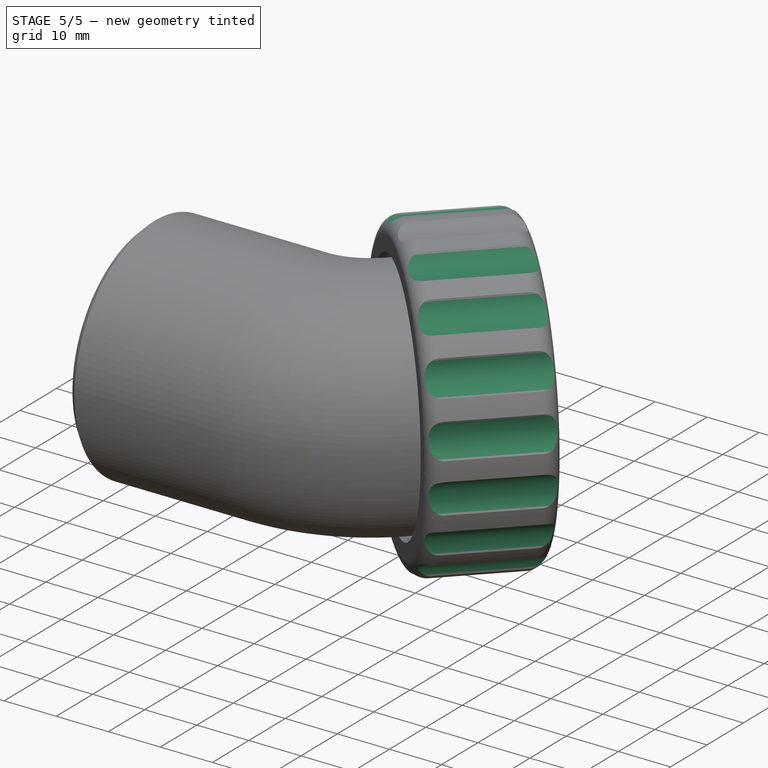
[diagram: stage 5 of 5 — iso view after this stage's code; geometry added in this stage tinted green]
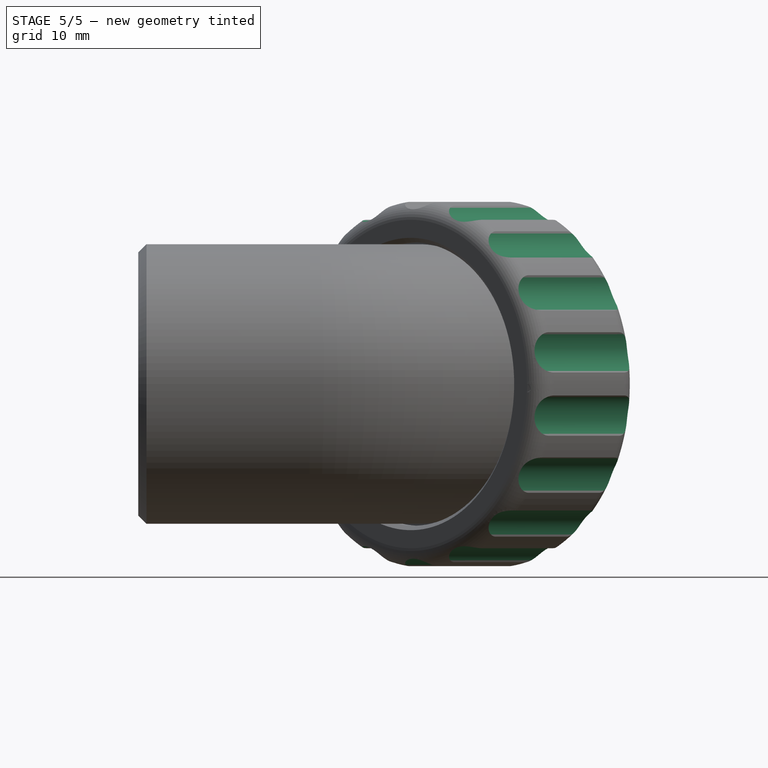
[diagram: stage 5 of 5 — front view after this stage's code; geometry added in this stage tinted green]
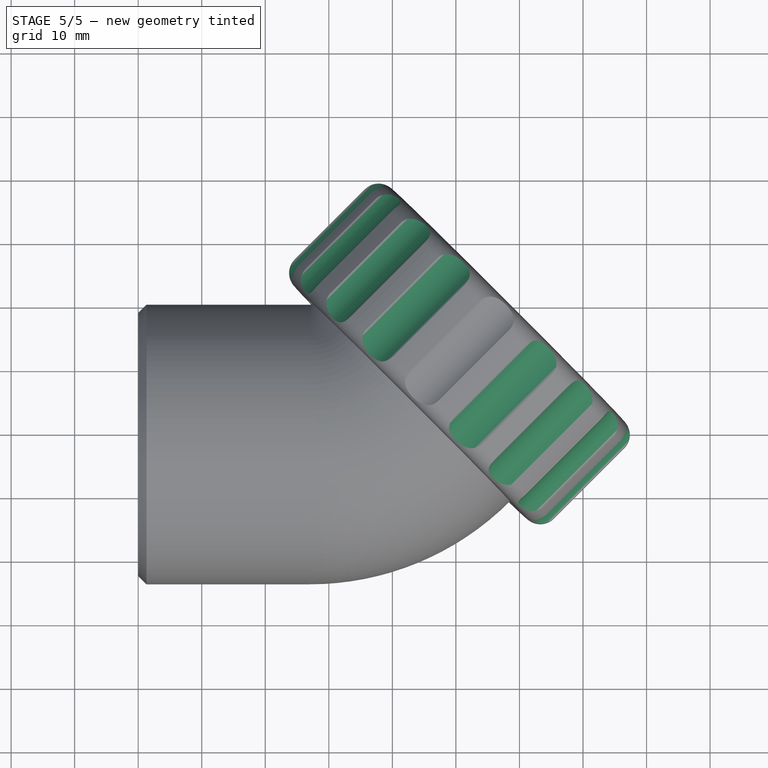
[diagram: stage 5 of 5 — top view after this stage's code; geometry added in this stage tinted green]
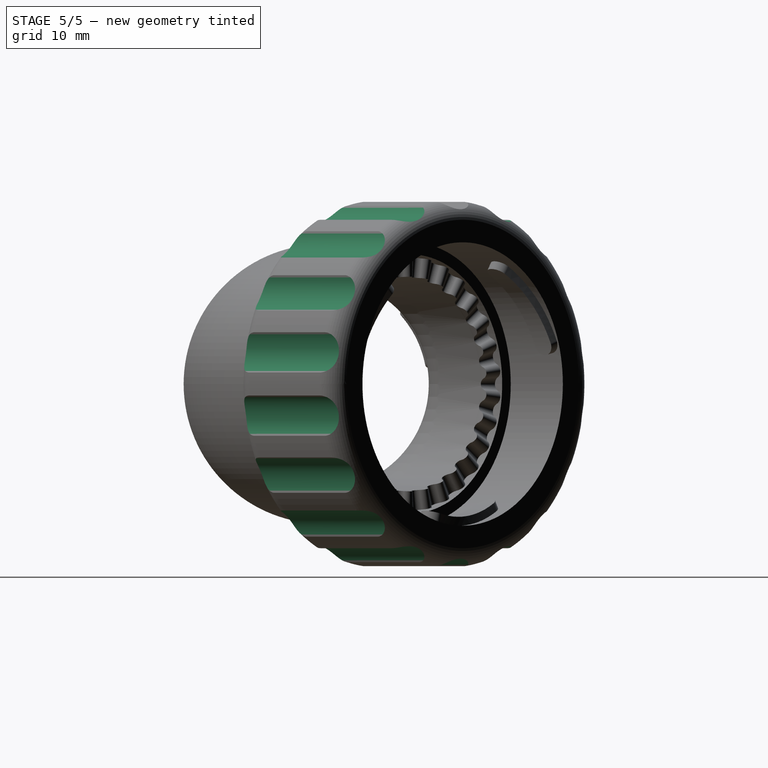
[diagram: stage 5 of 5 — right view after this stage's code; geometry added in this stage tinted green]
FEATURE [PartDesign::Line] DatumLine001
  AttacherType = Attacher::AttachEngineLine
  Length = 20
  MapMode = 19
  Placement = pos=(47.6012,-10.6988,-1.88e-14) rot=(0.862856,-0.357407,-0.357407;1.71777rad)
  ResizeMode = 0
  Support = -> [Cylinder]
FEATURE [PartDesign::PolarPattern] PolarPattern
  Angle = 360
  Axis = -> DatumLine001
  BaseFeature = -> Cylinder
  Occurrences = 18
  Originals = -> [Cylinder]
  Overlap = 0
  Placement = pos=(59.622,1.32203,32.5) rot=(0.357407,-0.862856,0.357407;1.71777rad)
  Refine = true
FEATURE [Part::MultiFuse] Fusion  label="Bayonet_Ring"
  Refine = true
  Shapes = -> [Sketch_On_Surface,Body001]
FEATURE [App::DocumentObjectGroup] Group  label="MetaObjects"
  Group = -> [Cut_Face10,PolarPattern_Face44,Mapped_Sketch001]
FEATURE [Part::Compound] Compound  label="TS55_HosePort_PiPAssembly"
  Links = -> [Cut001,Fusion]
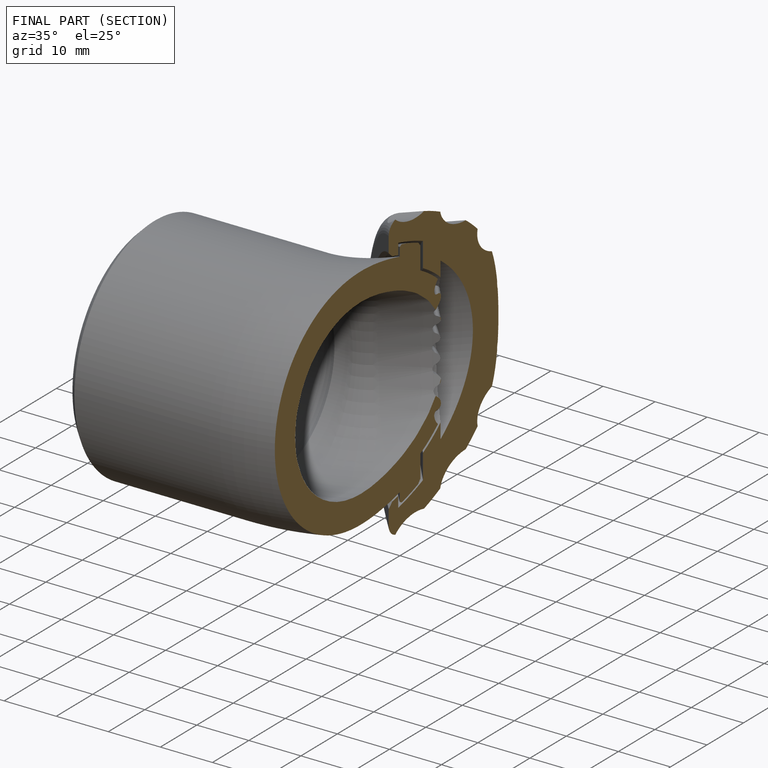
[diagram: finished part — half-section view (interior)]
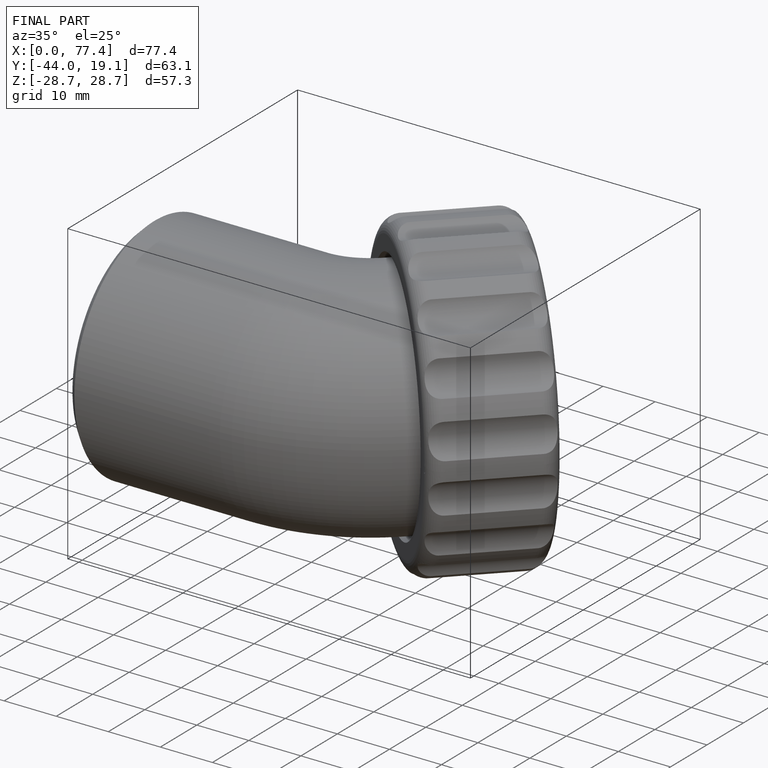
[diagram: finished part — iso view with bounding-box wireframe]
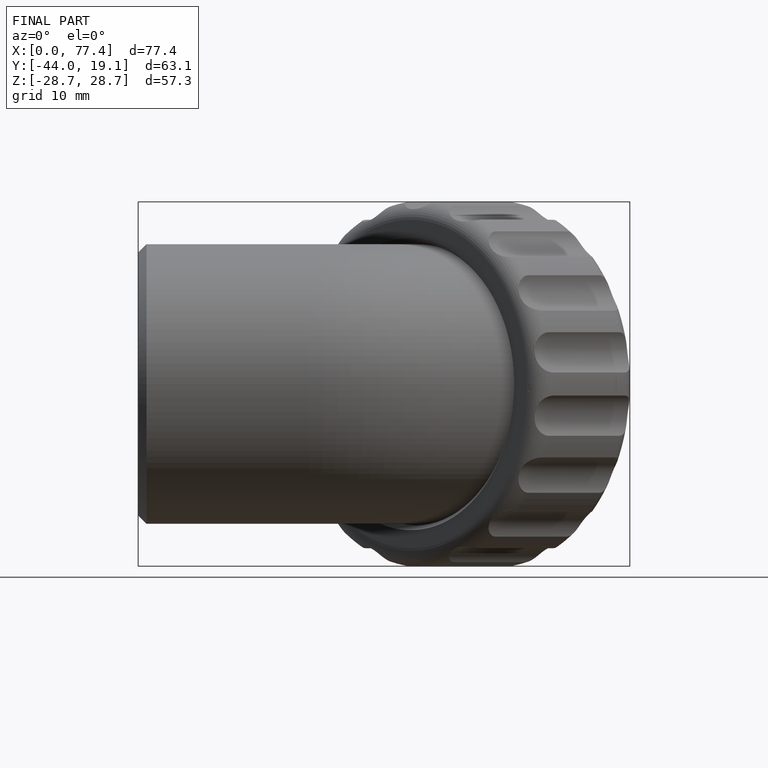
[diagram: finished part — front view with bounding-box wireframe]
